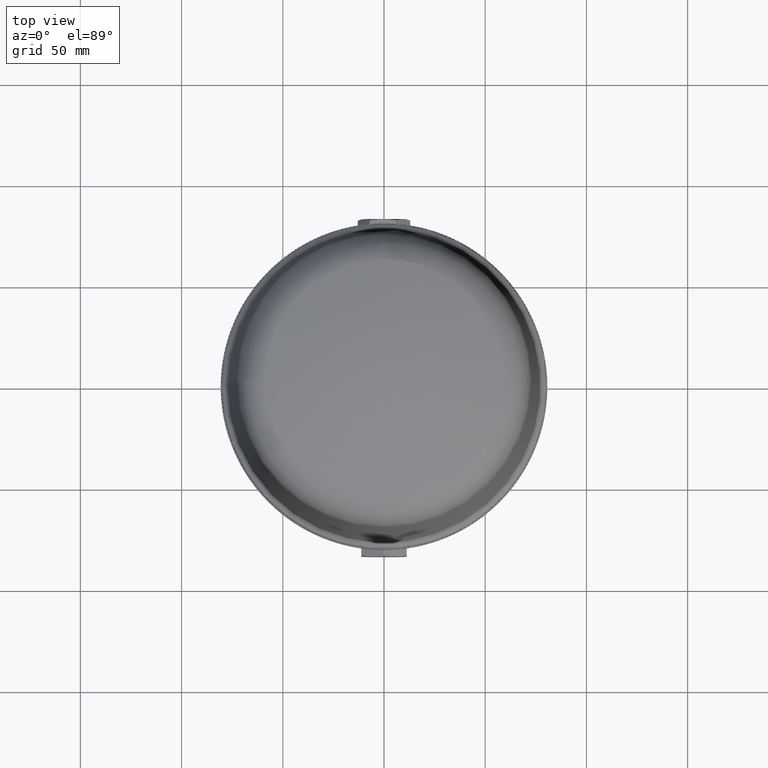
[diagram: clean part render]
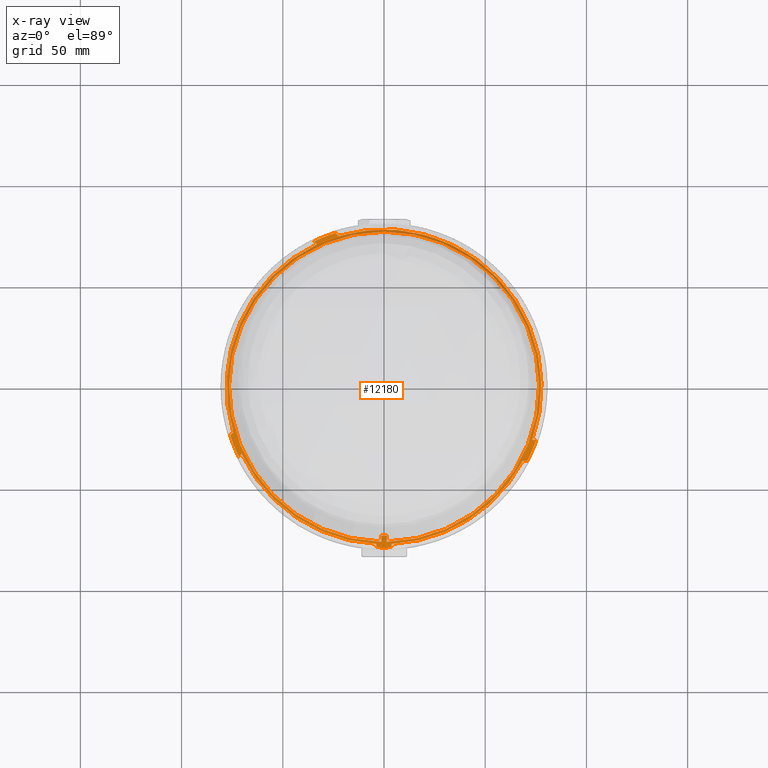
[diagram: x-ray — body ghosted, one internal face saturated and labeled with its STEP entity id]
A machine part, top view, then the same camera in x-ray: the body is ghosted and one INTERNAL B-rep face — a face not visible from any outside direction — is saturated and labeled: STEP entity #12180.
In plain terms, the highlighted planar face has unit normal (0, 0, -1).
Its self-contained STEP definition (entity closure, byte-faithful):
#8575=LINE('',#31707,#9907);
#8579=LINE('',#31716,#9911);
#9400=LINE('',#36502,#10732);
#9406=LINE('',#36514,#10738);
#9409=LINE('',#36521,#10741);
#9412=LINE('',#36527,#10744);
#9414=LINE('',#36530,#10746);
#9760=LINE('',#37337,#11092);
#9762=LINE('',#37340,#11094);
#9764=LINE('',#37343,#11096);
#9766=LINE('',#37346,#11098);
#9768=LINE('',#37349,#11100);
#9770=LINE('',#37358,#11102);
#9771=LINE('',#37360,#11103);
#9772=LINE('',#37362,#11104);
#9907=VECTOR('',#26561,1.);
#9911=VECTOR('',#26567,1.);
#10732=VECTOR('',#29744,1.);
#10738=VECTOR('',#29752,1.);
#10741=VECTOR('',#29761,1.);
#10744=VECTOR('',#29766,1.);
#10746=VECTOR('',#29770,1.);
#11092=VECTOR('',#31038,1.);
#11094=VECTOR('',#31042,1.);
#11096=VECTOR('',#31046,1.);
#11098=VECTOR('',#31050,1.);
#11100=VECTOR('',#31054,1.);
#11102=VECTOR('',#31066,1.);
#11103=VECTOR('',#31067,1.);
#11104=VECTOR('',#31068,1.);
#12180=ADVANCED_FACE('',(#13116,#13117),#13016,.T.);
#13016=PLANE('',#26318);
#13116=FACE_BOUND('',#14181,.T.);
#13117=FACE_BOUND('',#14182,.T.);
#14181=EDGE_LOOP('',(#19102,#19103,#19104,#19105));
#14182=EDGE_LOOP('',(#19106,#19107,#19108,#19109,#19110,#19111,#19112,#19113,
#19114,#19115,#19116,#19117,#19118,#19119,#19120,#19121,#19122,#19123,#19124,
#19125));
#19102=ORIENTED_EDGE('',*,*,#23625,.F.);
#19103=ORIENTED_EDGE('',*,*,#23626,.T.);
#19104=ORIENTED_EDGE('',*,*,#23627,.T.);
#19105=ORIENTED_EDGE('',*,*,#23628,.T.);
#19106=ORIENTED_EDGE('',*,*,#23624,.T.);
#19107=ORIENTED_EDGE('',*,*,#23253,.T.);
#19108=ORIENTED_EDGE('',*,*,#23268,.F.);
#19109=ORIENTED_EDGE('',*,*,#23263,.T.);
#19110=ORIENTED_EDGE('',*,*,#21247,.T.);
#19111=ORIENTED_EDGE('',*,*,#23616,.T.);
#19112=ORIENTED_EDGE('',*,*,#21279,.T.);
#19113=ORIENTED_EDGE('',*,*,#23618,.T.);
#19114=ORIENTED_EDGE('',*,*,#22210,.T.);
#19115=ORIENTED_EDGE('',*,*,#23614,.T.);
#19116=ORIENTED_EDGE('',*,*,#21282,.T.);
#19117=ORIENTED_EDGE('',*,*,#21266,.T.);
#19118=ORIENTED_EDGE('',*,*,#21255,.T.);
#19119=ORIENTED_EDGE('',*,*,#23620,.T.);
#19120=ORIENTED_EDGE('',*,*,#21275,.T.);
#19121=ORIENTED_EDGE('',*,*,#23622,.T.);
#19122=ORIENTED_EDGE('',*,*,#21251,.T.);
#19123=ORIENTED_EDGE('',*,*,#23266,.T.);
#19124=ORIENTED_EDGE('',*,*,#21262,.F.);
#19125=ORIENTED_EDGE('',*,*,#23259,.T.);
#19635=VERTEX_POINT('',#31615);
#19636=VERTEX_POINT('',#31617);
#19639=VERTEX_POINT('',#31624);
#19640=VERTEX_POINT('',#31626);
#19643=VERTEX_POINT('',#31633);
#19644=VERTEX_POINT('',#31635);
#19650=VERTEX_POINT('',#31708);
#19651=VERTEX_POINT('',#31709);
#19654=VERTEX_POINT('',#31717);
#19661=VERTEX_POINT('',#31737);
#19663=VERTEX_POINT('',#31740);
#19665=VERTEX_POINT('',#31746);
#19667=VERTEX_POINT('',#31749);
#19669=VERTEX_POINT('',#31755);
#20596=VERTEX_POINT('',#33612);
#20597=VERTEX_POINT('',#33614);
#21061=VERTEX_POINT('',#36503);
#21062=VERTEX_POINT('',#36504);
#21065=VERTEX_POINT('',#36513);
#21067=VERTEX_POINT('',#36522);
#21069=VERTEX_POINT('',#37356);
#21070=VERTEX_POINT('',#37357);
#21071=VERTEX_POINT('',#37359);
#21072=VERTEX_POINT('',#37361);
#21247=EDGE_CURVE('',#19636,#19635,#23863,.T.);
#21251=EDGE_CURVE('',#19640,#19639,#23865,.T.);
#21255=EDGE_CURVE('',#19644,#19643,#23867,.T.);
#21262=EDGE_CURVE('',#19650,#19651,#8575,.T.);
#21266=EDGE_CURVE('',#19654,#19644,#8579,.T.);
#21275=EDGE_CURVE('',#19663,#19661,#23874,.T.);
#21279=EDGE_CURVE('',#19667,#19665,#23876,.T.);
#21282=EDGE_CURVE('',#19669,#19654,#23878,.T.);
#22210=EDGE_CURVE('',#20597,#20596,#24342,.T.);
#23253=EDGE_CURVE('',#21061,#21062,#9400,.T.);
#23259=EDGE_CURVE('',#19650,#21065,#9406,.T.);
#23263=EDGE_CURVE('',#21067,#19636,#9409,.T.);
#23266=EDGE_CURVE('',#19639,#19651,#9412,.T.);
#23268=EDGE_CURVE('',#21067,#21062,#9414,.T.);
#23614=EDGE_CURVE('',#20596,#19669,#9760,.T.);
#23616=EDGE_CURVE('',#19635,#19667,#9762,.T.);
#23618=EDGE_CURVE('',#19665,#20597,#9764,.T.);
#23620=EDGE_CURVE('',#19643,#19663,#9766,.T.);
#23622=EDGE_CURVE('',#19661,#19640,#9768,.T.);
#23624=EDGE_CURVE('',#21065,#21061,#24576,.T.);
#23625=EDGE_CURVE('',#21069,#21070,#24577,.T.);
#23626=EDGE_CURVE('',#21069,#21071,#9770,.T.);
#23627=EDGE_CURVE('',#21071,#21072,#9771,.T.);
#23628=EDGE_CURVE('',#21072,#21070,#9772,.T.);
#23863=CIRCLE('',#24653,77.8);
#23865=CIRCLE('',#24656,77.8);
#23867=CIRCLE('',#24659,77.8);
#23874=CIRCLE('',#24674,79.7);
#23876=CIRCLE('',#24677,79.7);
#23878=CIRCLE('',#24680,79.7);
#24342=CIRCLE('',#25147,77.8);
#24576=CIRCLE('',#26315,79.8);
#24577=CIRCLE('',#26317,76.6);
#24653=AXIS2_PLACEMENT_3D('',#31616,#26534,#26535);
#24656=AXIS2_PLACEMENT_3D('',#31625,#26542,#26543);
#24659=AXIS2_PLACEMENT_3D('',#31634,#26550,#26551);
#24674=AXIS2_PLACEMENT_3D('',#31739,#26591,#26592);
#24677=AXIS2_PLACEMENT_3D('',#31748,#26599,#26600);
#24680=AXIS2_PLACEMENT_3D('',#31754,#26606,#26607);
#25147=AXIS2_PLACEMENT_3D('',#33613,#28004,#28005);
#26315=AXIS2_PLACEMENT_3D('',#37353,#31060,#31061);
#26317=AXIS2_PLACEMENT_3D('',#37355,#31064,#31065);
#26318=AXIS2_PLACEMENT_3D('',#37363,#31069,#31070);
#26534=DIRECTION('',(0.,0.,-1.));
#26535=DIRECTION('',(-1.,0.,0.));
#26542=DIRECTION('',(0.,0.,-1.));
#26543=DIRECTION('',(-1.,0.,0.));
#26550=DIRECTION('',(0.,0.,-1.));
#26551=DIRECTION('',(-1.,0.,0.));
#26561=DIRECTION('',(1.,0.,0.));
#26567=DIRECTION('',(0.707106781186551,-0.707106781186544,0.));
#26591=DIRECTION('',(0.,0.,-1.));
#26592=DIRECTION('',(-1.,0.,0.));
#26599=DIRECTION('',(0.,0.,-1.));
#26600=DIRECTION('',(-1.,0.,0.));
#26606=DIRECTION('',(0.,0.,-1.));
#26607=DIRECTION('',(-1.,0.,0.));
#28004=DIRECTION('',(0.,0.,-1.));
#28005=DIRECTION('',(-1.,0.,0.));
#29744=DIRECTION('',(0.,1.,0.));
#29752=DIRECTION('',(0.,-1.,0.));
#29761=DIRECTION('',(0.,1.,0.));
#29766=DIRECTION('',(0.,-1.,0.));
#29770=DIRECTION('',(1.,0.,0.));
#31038=DIRECTION('',(-0.707106781186551,0.707106781186544,0.));
#31042=DIRECTION('',(-0.707106781186551,-0.707106781186544,0.));
#31046=DIRECTION('',(0.707106781186551,0.707106781186544,0.));
#31050=DIRECTION('',(1.,0.,0.));
#31054=DIRECTION('',(-1.,0.,0.));
#31060=DIRECTION('',(0.,0.,-1.));
#31061=DIRECTION('',(-1.,0.,0.));
#31064=DIRECTION('',(0.,0.,-1.));
#31065=DIRECTION('',(-1.,0.,0.));
#31066=DIRECTION('',(0.,1.,0.));
#31067=DIRECTION('',(1.,0.,0.));
#31068=DIRECTION('',(0.,-1.,0.));
#31069=DIRECTION('',(0.,0.,-1.));
#31070=DIRECTION('',(-1.,0.,0.));
#31615=CARTESIAN_POINT('',(-70.3711780165402,-33.1773613261273,18.8));
#31616=CARTESIAN_POINT('',(7.26155921698074E-015,0.,18.8));
#31617=CARTESIAN_POINT('',(-3.75000000000007,-77.7095714825401,18.8));
#31624=CARTESIAN_POINT('',(3.74999999999993,-77.7095714825401,18.8));
#31625=CARTESIAN_POINT('',(7.26155921698074E-015,0.,18.8));
#31626=CARTESIAN_POINT('',(68.5463346941323,-36.8,18.8));
#31633=CARTESIAN_POINT('',(73.2198743511624,-26.3,18.8));
#31634=CARTESIAN_POINT('',(7.26155921698074E-015,0.,18.8));
#31635=CARTESIAN_POINT('',(-22.4480485400391,74.4911076353685,18.8));
#31707=CARTESIAN_POINT('',(5.76275984198074E-015,-79.3,18.8));
#31708=CARTESIAN_POINT('',(2.00000000000001,-79.3,18.8));
#31709=CARTESIAN_POINT('',(3.74999999999996,-79.3,18.8));
#31716=CARTESIAN_POINT('',(26.0215295476648,26.0215295476651,18.8));
#31717=CARTESIAN_POINT('',(-23.9677192964619,76.0107783917913,18.8));
#31737=CARTESIAN_POINT('',(70.6954736882072,-36.8,18.8));
#31739=CARTESIAN_POINT('',(4.53654984198073E-015,-1.6579332E-015,18.8));
#31740=CARTESIAN_POINT('',(75.2356298571362,-26.3,18.8));
#31746=CARTESIAN_POINT('',(-76.0107783917915,-23.9677192964611,18.8));
#31748=CARTESIAN_POINT('',(8.01609114198074E-015,3.0992061E-015,18.8));
#31749=CARTESIAN_POINT('',(-71.7965324040284,-34.6027157136155,18.8));
#31754=CARTESIAN_POINT('',(1.03607646419807E-014,-7.54534242E-016,18.8));
#31755=CARTESIAN_POINT('',(-34.6027157136162,71.7965324040281,18.8));
#33612=CARTESIAN_POINT('',(-33.177361326128,70.3711780165399,18.8));
#33613=CARTESIAN_POINT('',(7.26155921698074E-015,0.,18.8));
#33614=CARTESIAN_POINT('',(-74.4911076353687,-22.4480485400383,18.8));
#36502=CARTESIAN_POINT('',(-2.00000000000002,0.,18.8));
#36503=CARTESIAN_POINT('',(-2.00000000000002,-79.7749334064279,18.8));
#36504=CARTESIAN_POINT('',(-2.,-79.3,18.8));
#36513=CARTESIAN_POINT('',(2.00000000000001,-79.7749334064279,18.8));
#36514=CARTESIAN_POINT('',(2.00000000000001,0.,18.8));
#36521=CARTESIAN_POINT('',(-3.75000000000007,0.,18.8));
#36522=CARTESIAN_POINT('',(-3.75000000000007,-79.3,18.8));
#36527=CARTESIAN_POINT('',(3.74999999999993,0.,18.8));
#36530=CARTESIAN_POINT('',(5.76275984198074E-015,-79.3,18.8));
#37337=CARTESIAN_POINT('',(18.5969083452061,18.5969083452063,18.8));
#37340=CARTESIAN_POINT('',(-18.5969083452061,18.5969083452063,18.8));
#37343=CARTESIAN_POINT('',(-26.0215295476648,26.0215295476651,18.8));
#37346=CARTESIAN_POINT('',(5.76275984198074E-015,-26.3,18.8));
#37349=CARTESIAN_POINT('',(5.76275984198074E-015,-36.8,18.8));
#37353=CARTESIAN_POINT('',(5.76275984198074E-015,0.,18.8));
#37355=CARTESIAN_POINT('',(7.37257477290143E-015,0.,18.8));
#37356=CARTESIAN_POINT('',(-1.34629120178454,-76.5881681462614,18.8));
#37357=CARTESIAN_POINT('',(1.34629120178257,-76.5881681462614,18.8));
#37358=CARTESIAN_POINT('',(-1.34629120178454,-75.1,18.8));
#37359=CARTESIAN_POINT('',(-1.34629120178454,-73.6,18.8));
#37360=CARTESIAN_POINT('',(5.76275984198074E-015,-73.6,18.8));
#37361=CARTESIAN_POINT('',(1.34629120178257,-73.6,18.8));
#37362=CARTESIAN_POINT('',(1.34629120178257,-75.1,18.8));
#37363=CARTESIAN_POINT('',(5.76275984198074E-015,0.,18.8));